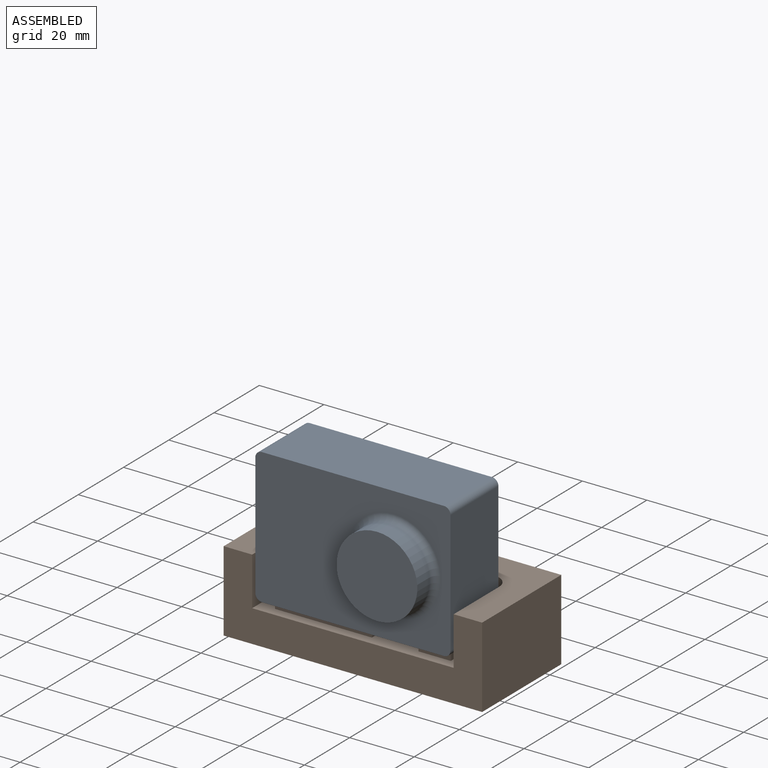
[diagram: assembled view]
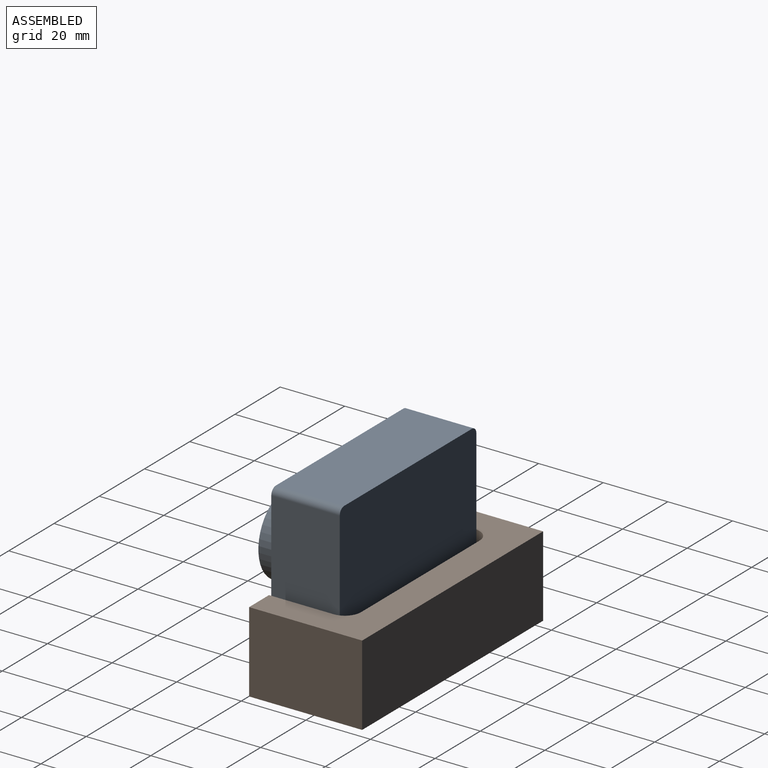
[diagram: assembled view, second angle]
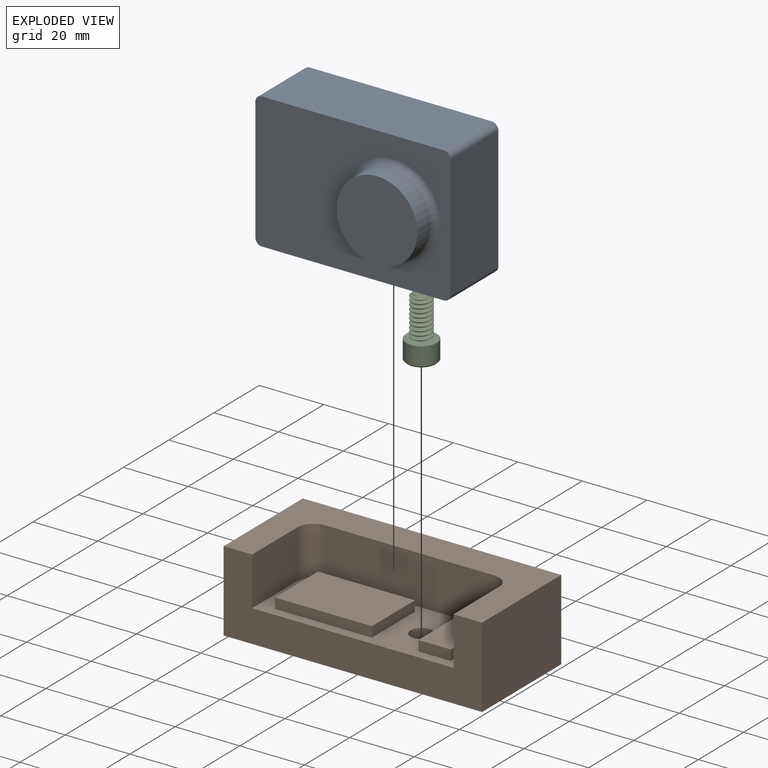
[diagram: exploded view]
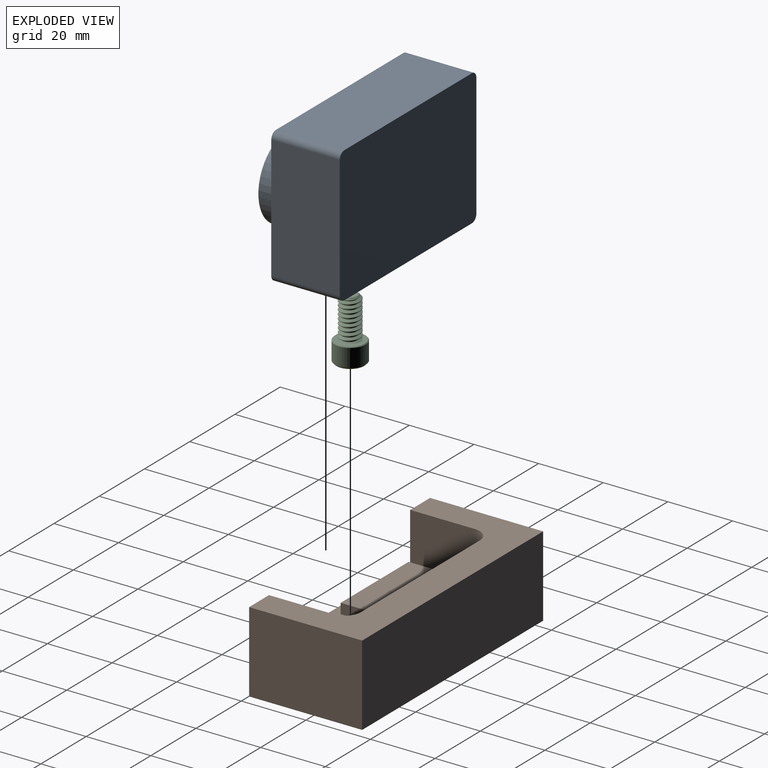
[diagram: exploded view, second angle]
ASSEMBLY  parts=3 mates=2
PART A: 15 faces, bbox 60.4x28.7x42 mm
  f0: plane 38x21.2mm, normal (-1,0,0), area 805.6mm2, adj f1,f3,f10,f12
  f1: plane 60.4x42mm, normal (0,-1,0), area 1872.8mm2, adj f0,f2,f4,f5,f8,f9,f10,f11
  f2: plane 38x21.2mm, normal (1,0,0), area 805.6mm2, adj f1,f3,f9,f11
  f3: plane 60.4x42mm, normal (0,1,0), area 2533.4mm2, adj f0,f2,f4,f5,f9,f10,f11,f12
  f4: plane 56.4x21.2mm, normal (0,0,1), area 1195.7mm2, adj f1,f3,f11,f12
  f5: plane 56.4x21.2mm, normal (0,0,-1), area 1175.2mm2, adj f1,f3,f9,f10,f14
  f6: cylinder r=12.5mm len=25mm, axis (0,1,0), area 432mm2, adj f7,f8
  f7: plane 25x25mm, normal (0,-1,0), area 490.9mm2, adj f6
  f8: torus R=14.5mm, axis (0,1,0), area 261.1mm2, adj f1,f6
  f9: cylinder r=2mm len=21.2mm, axis (0,1,0), area 66.6mm2, adj f1,f2,f3,f5
  f10: cylinder r=2mm len=21.2mm, axis (0,-1,0), area 66.6mm2, adj f0,f1,f3,f5
  f11: cylinder r=2mm len=21.2mm, axis (0,-1,0), area 66.6mm2, adj f1,f2,f3,f4
  f12: cylinder r=2mm len=21.2mm, axis (0,1,0), area 66.6mm2, adj f0,f1,f3,f4
  f13: cone r=0mm half-angle=59deg, axis (0,0,-1), area 23.9mm2, adj f14
  f14: cylinder r=2.55mm len=5.11mm, axis (0,0,-1), area 81.5mm2, adj f5,f13
PART B: 25 faces, bbox 80x35x25 mm
  f0: plane 80x35mm, normal (0,0,1), area 1250.7mm2, adj f1,f2,f3,f4,f6,f7,f9,f10
  f1: plane 35x25mm, normal (-1,0,0), area 875mm2, adj f0,f2,f4,f5
  f2: plane 80x25mm, normal (0,-1,0), area 1064mm2, adj f0,f1,f3,f5,f6,f7,f8
  f3: plane 35x25mm, normal (1,0,0), area 875mm2, adj f0,f2,f4,f5
  f4: plane 80x25mm, normal (0,1,0), area 2000mm2, adj f0,f1,f3,f5
  f5: plane 80x35mm, normal (0,0,-1), area 2703mm2, adj f1,f2,f3,f4,f14
  f6: plane 20x15mm, normal (-1,0,0), area 300mm2, adj f0,f2,f8,f11
  f7: plane 20x15mm, normal (1,0,0), area 300mm2, adj f0,f2,f8,f10
  f8: plane 62.4x25mm, normal (0,0,1), area 753.4mm2, adj f2,f6,f7,f9,f10,f11,f12,f15
  f9: plane 52.4x15mm, normal (0,-1,0), area 786mm2, adj f0,f8,f10,f11
  f10: cylinder r=5mm len=15mm, axis (0,0,-1), area 117.8mm2, adj f0,f7,f8,f9
  f11: cylinder r=5mm len=15mm, axis (0,0,1), area 117.8mm2, adj f0,f6,f8,f9
  f12: cylinder r=3.38mm len=6.76mm, axis (0,0,-1), area 127.4mm2, adj f8,f13
  f13: plane 11.11x11.11mm, normal (0,0,-1), area 61.1mm2, adj f12,f14
  f14: cylinder r=5.56mm len=11.11mm, axis (0,0,-1), area 139.6mm2, adj f5,f13
  f15: plane 19x3.18mm, normal (-1,0,0), area 60.3mm2, adj f8,f16,f18,f19
  f16: plane 30x3.18mm, normal (0,-1,0), area 95.2mm2, adj f8,f15,f17,f19
  f17: plane 19x3.18mm, normal (1,0,0), area 60.3mm2, adj f8,f16,f18,f19
  f18: plane 30x3.18mm, normal (0,1,0), area 95.2mm2, adj f8,f15,f17,f19
  f19: plane 30x19mm, normal (0,0,1), area 570mm2, adj f15,f16,f17,f18
  f20: plane 10x3.18mm, normal (0,1,0), area 31.7mm2, adj f8,f21,f23,f24
  f21: plane 19x3.18mm, normal (-1,0,0), area 60.3mm2, adj f8,f20,f22,f24
  f22: plane 10x3.18mm, normal (0,-1,0), area 31.7mm2, adj f8,f21,f23,f24
  f23: plane 19x3.18mm, normal (1,0,0), area 60.3mm2, adj f8,f20,f22,f24
  f24: plane 19x10mm, normal (0,0,1), area 190mm2, adj f20,f21,f22,f23
PART C: 24 faces, bbox 10.6x20.6x10.6 mm
  f0: cylinder r=3.17mm len=11.75mm, axis (0,-1,0), area 43mm2, adj f2,f4,f5,f6
  f1: plane 4.45x4.45mm, normal (0,-1,0), area 15.5mm2, adj f2
  f2: cone r=2.22mm half-angle=45deg, axis (0,1,0), area 12.3mm2, adj f0,f1,f3,f4,f5
  f3: cylinder r=2.35mm len=12.57mm, axis (0,1,0), area 27.3mm2, adj f2,f4,f5,f6
  f4: bspline ~13.39x7.33mm, area 158.3mm2, adj f0,f2,f3,f6
  f5: bspline ~13.81x7.33mm, area 157.5mm2, adj f0,f2,f3,f6
  f6: plane 9.55x9.55mm, normal (0,-1,0), area 40.1mm2, adj f0,f3,f4,f5,f23
  f7: cylinder r=4.76mm len=9.53mm, axis (0,-1,0), area 168.6mm2, adj f22,f23
  f8: plane 8.57x8.57mm, normal (0,1,0), area 34mm2, adj f9,f10,f11,f12,f13,f14,f22
  f9: cone r=2.75mm half-angle=45deg, axis (0,1,0), area 0mm2, adj f8,f16
  f10: cone r=2.75mm half-angle=45deg, axis (0,1,0), area 0mm2, adj f8,f17
  f11: cone r=2.75mm half-angle=45deg, axis (0,1,0), area 0mm2, adj f8,f18
  f12: cone r=2.75mm half-angle=45deg, axis (0,1,0), area 0mm2, adj f8,f19
  f13: cone r=2.75mm half-angle=45deg, axis (0,1,0), area 0mm2, adj f8,f20
  f14: cone r=2.75mm half-angle=45deg, axis (0,1,0), area 0mm2, adj f8,f21
  f15: plane 5.5x4.76mm, normal (0,1,0), area 19.6mm2, adj f16,f17,f18,f19,f20,f21
  f16: plane 4.61x3.42mm, normal (-0.5,0,-0.87), area 9.2mm2, adj f9,f15,f17,f21
  f17: plane 4.62x3.8mm, normal (-1,0,0), area 9.2mm2, adj f10,f15,f16,f18
  f18: plane 4.61x3.42mm, normal (-0.5,0,0.87), area 9.2mm2, adj f11,f15,f17,f19
  f19: plane 4.61x3.42mm, normal (0.5,0,0.87), area 9.2mm2, adj f12,f15,f18,f20
  f20: plane 4.62x3.8mm, normal (1,0,0), area 9.2mm2, adj f13,f15,f19,f21
  f21: plane 4.61x3.42mm, normal (0.5,0,-0.87), area 9.2mm2, adj f14,f15,f16,f20
  f22: cone r=4.29mm half-angle=45deg, axis (0,-1,0), area 19.1mm2, adj f7,f8
  f23: cone r=4.76mm half-angle=45deg, axis (0,1,0), area 9.8mm2, adj f6,f7
PLACE A t=(13.37,-15.06,-7.75)mm
PLACE B t=(3.57,-15.06,-20.25)mm
PLACE C rot(axis=(-1,0,0),90deg) t=(56.27,-2.86,-3.55)mm
MATE fastened C.f0 <-> B.f12  axis (0,0,1) through (56.27,-2.86,-16.25)mm
MATE fastened A.f13 <-> B.f12  axis (0,0,-1) through (56.27,-2.86,-7.75)mm
